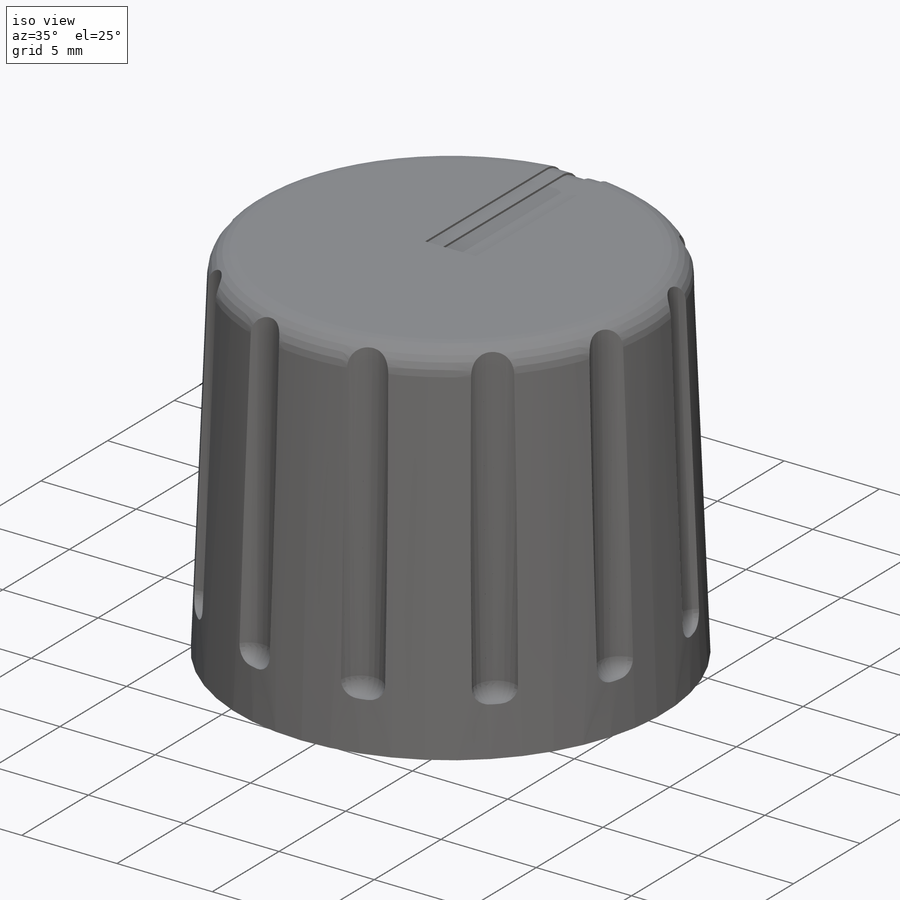
[diagram: iso view]
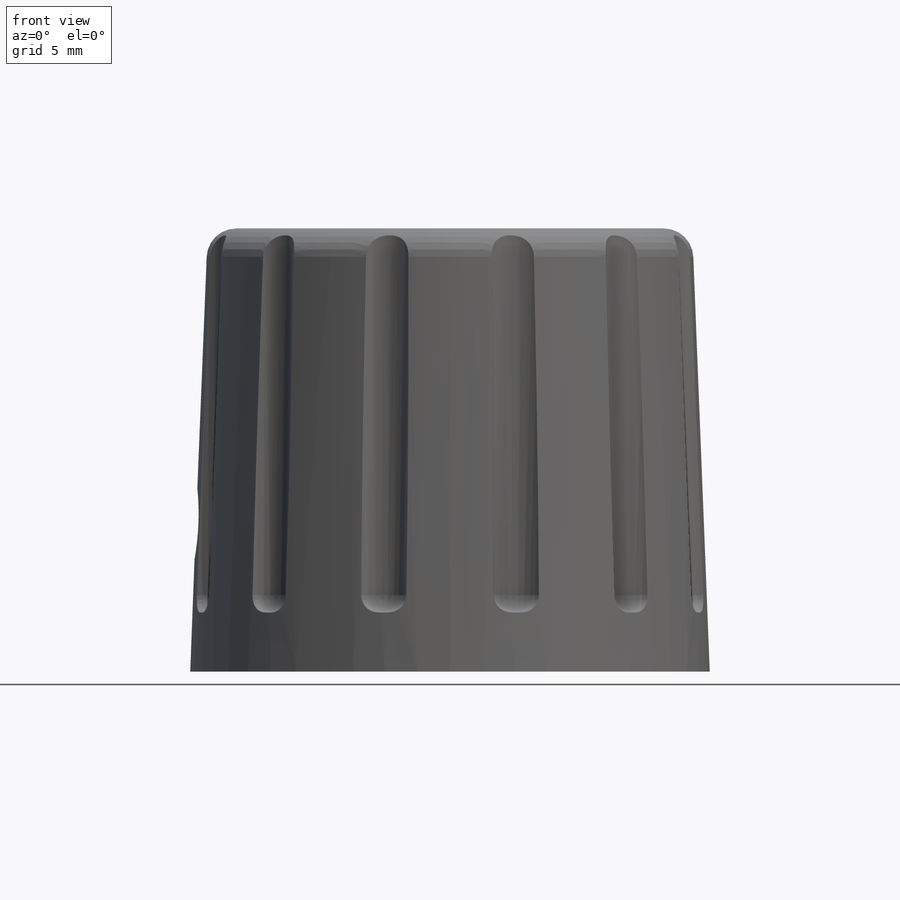
[diagram: front view]
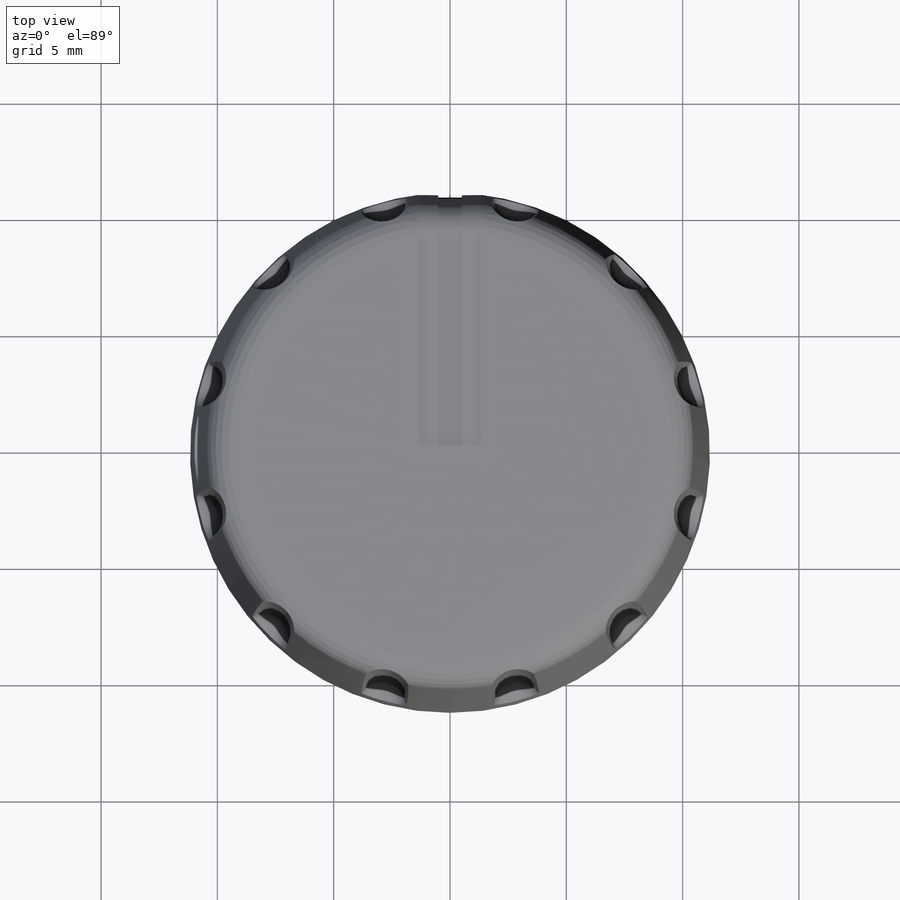
[diagram: top view]
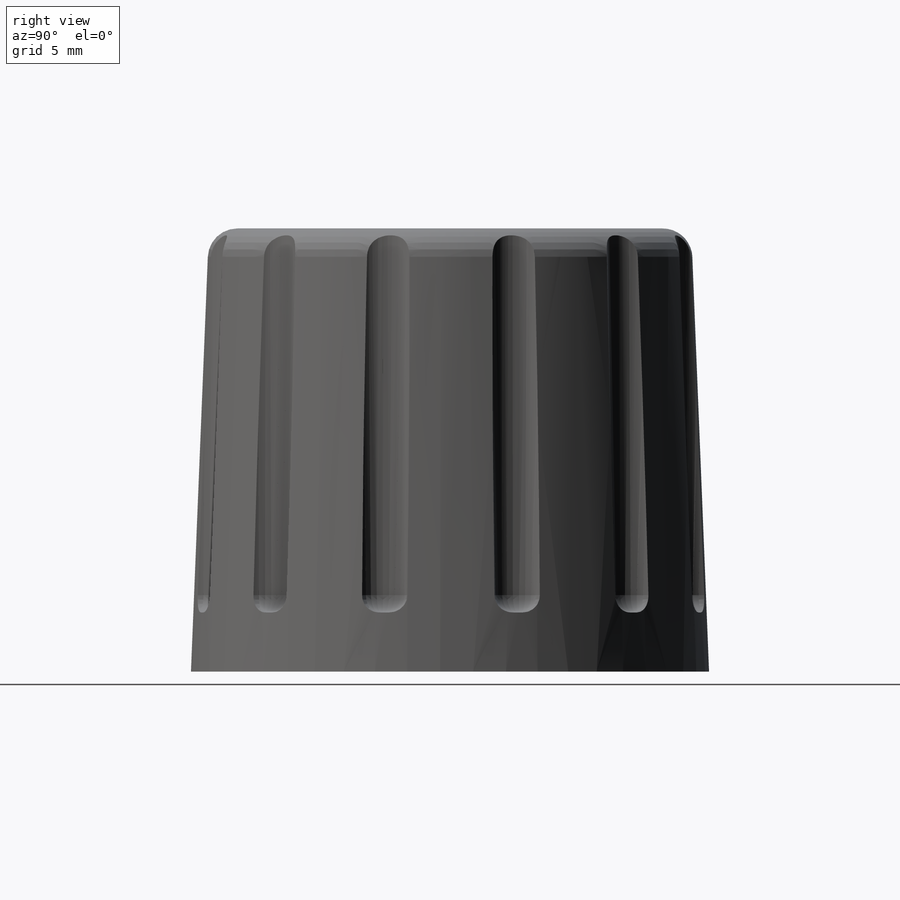
[diagram: right view]
SOLIDWORKS PART (.sldprt)
format: sldprt  version: not decoded by parser v0  size: 570,880 bytes
history: native  units: mm
features: sketch x12, cut_extrude x10, plane x4, fillet x2, material x1, revolve x1, pattern_circular x1 (+11 scaffold rows collapsed)
feature tree (42):
  scaffold x11  (default folders/planes/origin — collapsed)
  material  "PMMA"
  sketch  "Sketch1"  dims[c1.D1=22.352mm c1.D2=22.352mm c2.D1=11.176mm c2.D2=19.05mm c2.D3=11.176mm c3.D3=90.0deg c4.D3=11.176mm c5.D3=85.0deg c6.D3=11.176mm c7.D3=~87.70939deg]
  revolve  "Rotovat1"  Angle=360deg
  sketch  "Skica1"  dims[D1=~5.005309mm]
  cut_extrude  "Odebrat vysunutím1"  Depth=3.81mm
  sketch  "Skica2"  dims[D1=5.4864mm]
  cut_extrude  "Odebrat vysunutím3"  Depth=11.938mm
  plane  "Rovina1"  Offset=2.54mm
  sketch  "Skica5"  dims[c1.D3=~1.286015mm c1.D1=10.414mm c2.D1=45.0deg c3.D1=10.414mm c4.D1=45.0deg c4.D2=2.54mm]
  cut_extrude  "Odebrat vysunutím5"  Depth=21.59mm
  pattern_circular  "Kruhové pole1"  Count=12 Angle=30deg
  fillet  "Zaoblit2"  Radius=1.27mm
  fillet  "Zaoblit3"  Radius=0.762mm
  sketch  "Skica6"  dims[D1=1.3335mm D2=1.3335mm]
  cut_extrude  "Odebrat vysunutím6"  Depth=0.1016mm
  plane  "Rovina2"
  sketch  "Skica7"  dims[D1=1.3335mm D2=1.3335mm]
  cut_extrude  "Odebrat vysunutím7"  Depth=0.1016mm
  plane  "Rovina3"
  plane  "Rovina4"  Offset=3.556mm
  sketch  "Skica8"  dims[D1=1.3335mm D2=1.3335mm]
  sketch  "Skica10"  dims[D1=0.2032mm D2=0.2032mm]
  cut_extrude  "Odebrat vysunutím10"  Depth=2.667mm
  sketch  "Skica11"  dims[D1=0.508mm D2=0.508mm]
  cut_extrude  "Odebrat vysunutím11"  Depth=0.1016mm
  sketch  "Skica12"  dims[D1=0.508mm D2=0.508mm]
  cut_extrude  "Odebrat vysunutím13"  Depth=0.1016mm
  sketch  "Skica13"
  cut_extrude  "Odebrat vysunutím14"  Depth=1.016mm
  sketch  "Skica14"  dims[D1=6.35mm]
  cut_extrude  "Odebrat vysunutím15"  Depth=13.208mm
decode coverage: 25 of 26 modeling features carry decoded parameters
note: ~ marks probable driven/reference dimensions
note: suppression state not decoded; provenance and decode notes live in map.json
